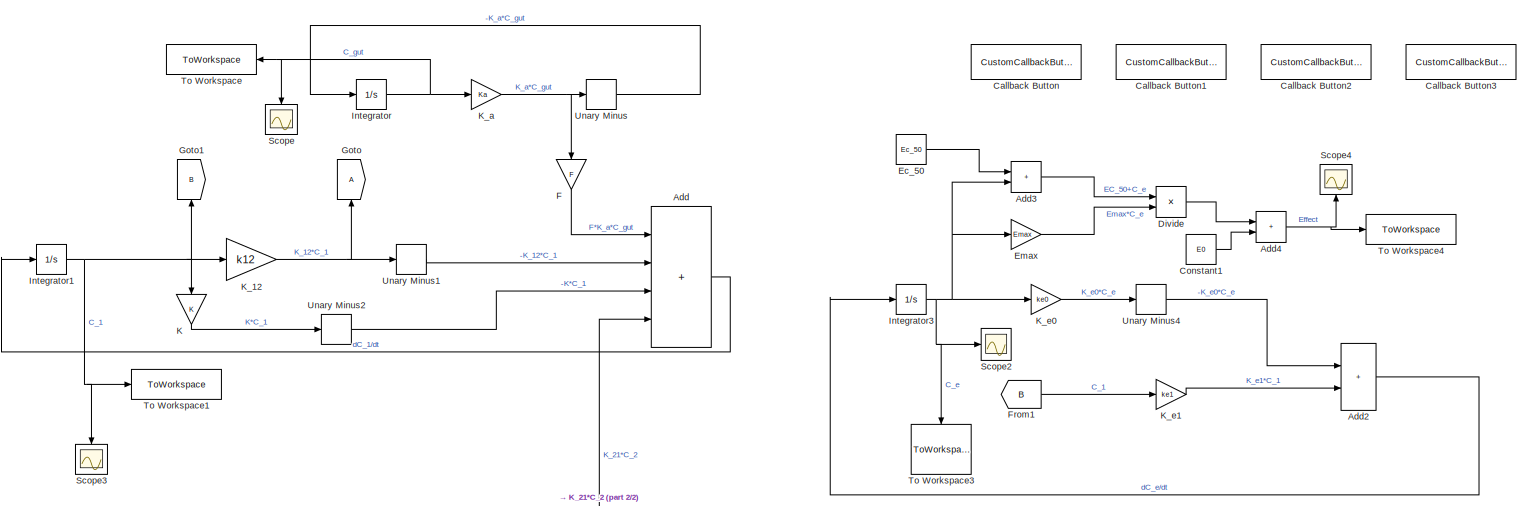
[diagram: root canvas - part 1/2, full width, top band]
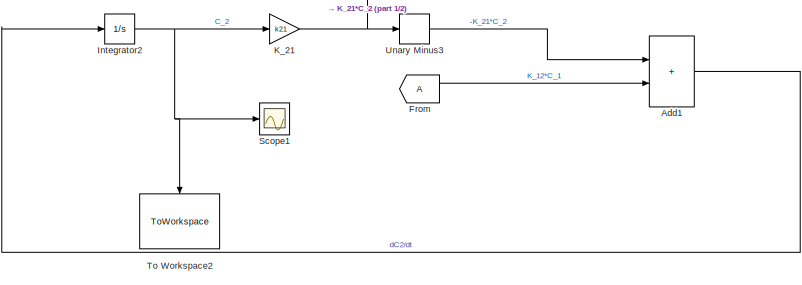
[diagram: root canvas - part 2/2, bottom center region]
MODEL slx_aa0d1e6b2fd5
KIND model
CONFIG AbsTol = auto
CONFIG EnableMultiTasking = off
CONFIG FixedStep = 0.01
CONFIG MaxStep = 1e-3
CONFIG MinStep = auto
CONFIG RelTol = 1e-5
CONFIG SampleTimeConstraint = Unconstrained
CONFIG SolverName = ode45
CONFIG StartTime = 0.0
CONFIG StopTime = 8
WORKSPACE source: MATLAB code (in-file)
WORKSPACE c_gut = linspace(200,1000,5)*0.89
WORKSPACE c_1 = 0
WORKSPACE c_2 = 0
WORKSPACE c_e = 0
WORKSPACE Ec_50 = 9.98
WORKSPACE E0 = 10
WORKSPACE Emax = 5.17
WORKSPACE K = 0.28
WORKSPACE k12 = 1.78
WORKSPACE k21 = 2.20  (= 2.2)
WORKSPACE Ka = 1.80  (= 1.8)
WORKSPACE ke1 = 0.83
WORKSPACE ke0 = 0.83
WORKSPACE F = 0.89
BLOCK [Sum] Add
  IconShape = rectangular
  Inputs = ++++
BLOCK [Sum] Add1
  IconShape = rectangular
BLOCK [Sum] Add2
  IconShape = rectangular
BLOCK [Sum] Add3
  IconShape = rectangular
BLOCK [Sum] Add4
  IconShape = rectangular
BLOCK [CustomCallbackButton] Callback Button
  Configuration = {"components":[{"name":"BackgroundImageComponent","settings":{"image":{"size":[0,0],"src":"default","srcOrientation":"Right"},"position":[0,0,1,1]}},{"name":"ButtonStateComponent","settings":{"buttonType":"momentary","clickFcn":"figure()\nplot(out.tout,out.C_1,'b','LineWidth',3)\nhold on\nplot(out.tout,out.C_2,'r','LineWidth',3)\nplot(out.tout,out.C_e,'g','Linewidth',3)\nplot(out.tout,out.C_gut,'m...<+2427ch>
  CustomBackgroundColor = {"color":[0.9568627451,0.9568627451,0.9568627451],"show":true}
BLOCK [CustomCallbackButton] Callback Button1
  Configuration = {"components":[{"name":"BackgroundImageComponent","settings":{"image":{"size":[0,0],"src":"default","srcOrientation":"Right"},"position":[0,0,1,1]}},{"name":"ButtonStateComponent","settings":{"buttonType":"momentary","clickFcn":"% Concentración plasmática\nfigure()\nplot(out.tout,out.C_1(:,1),'LineWidth',3)\nhold on\nfor i=2:size(out.C_1,2)\n    plot(out.tout,out.C_1(:,i),'LineWidth',3)\nend\ngrid...<+2603ch>
  CustomBackgroundColor = {"color":[0.9568627451,0.9568627451,0.9568627451],"show":true}
BLOCK [CustomCallbackButton] Callback Button2
  Configuration = {"components":[{"name":"BackgroundImageComponent","settings":{"image":{"size":[0,0],"src":"default","srcOrientation":"Right"},"position":[0,0,1,1]}},{"name":"ButtonStateComponent","settings":{"buttonType":"momentary","clickFcn":"% Paleta de colores\ncolor = ['b','r','g','m','c'];\n\n% Concentración plasmática\nfigure()\nplot(out.tout,out.C_1(:,1),color(1),'LineWidth',2)\nhold on\nfor i=2:size(out....<+2788ch>
  CustomBackgroundColor = {"color":[0.9568627451,0.9568627451,0.9568627451],"show":true}
BLOCK [CustomCallbackButton] Callback Button3
  Configuration = {"components":[{"name":"BackgroundImageComponent","settings":{"image":{"size":[0,0],"src":"default","srcOrientation":"Right"},"position":[0,0,1,1]}},{"name":"ButtonStateComponent","settings":{"buttonType":"momentary","clickFcn":"% Paleta de colores\ncolor = ['b','r','g','m','c'];\n\n% Concentración plasmática\nfigure()\nplot(out.tout,out.C_1(:,1),color(1),'LineWidth',2)\nhold on\nfor i=2:size(out....<+2780ch>
  CustomBackgroundColor = {"color":[0.9568627451,0.9568627451,0.9568627451],"show":true}
BLOCK [Constant] Constant1
  Value = E0
BLOCK [Product] Divide
  Inputs = /*
BLOCK [Constant] Ec_50
  Value = Ec_50
BLOCK [Gain] Emax
  Gain = Emax
BLOCK [Gain] F
  Gain = F
  NameLocation = left
BLOCK [From] From
BLOCK [From] From1
  GotoTag = B
BLOCK [Goto] Goto
  NameLocation = right
BLOCK [Goto] Goto1
  GotoTag = B
  NameLocation = right
BLOCK [Integrator] Integrator
  InitialCondition = c_gut
BLOCK [Integrator] Integrator1
  InitialCondition = c_1
BLOCK [Integrator] Integrator2
  InitialCondition = c_2
BLOCK [Integrator] Integrator3
  InitialCondition = c_e
BLOCK [Gain] K
  Gain = K
  NameLocation = left
BLOCK [Gain] K_12
  Gain = k12
BLOCK [Gain] K_21
  Gain = k21
BLOCK [Gain] K_a
  Gain = Ka
BLOCK [Gain] K_e0
  Gain = ke0
BLOCK [Gain] K_e1
  Gain = ke1
BLOCK [Scope] Scope
  Floating = off
  NameLocation = left
  NumInputPorts = 1
  ScopeSpecificationString = Simulink.scopes.TimeScopeBlockCfg('CurrentConfiguration', extmgr.ConfigurationSet(extmgr.Configuration('Core','General UI',true),extmgr.Configuration('Core','Source UI',true),extmgr.Configuration('Sources','WiredSimulink',true),extmgr.Configuration('Visuals','Time Domain',true),extmgr.Configuration('Tools','Plot Navigation',true),extmgr.Configuration('Tools','Measurements',true)),'Version','2024b'...<+1ch>
BLOCK [Scope] Scope1
  Floating = off
  NumInputPorts = 1
  ScopeSpecificationString = Simulink.scopes.TimeScopeBlockCfg('CurrentConfiguration', extmgr.ConfigurationSet(extmgr.Configuration('Core','General UI',true),extmgr.Configuration('Core','Source UI',true),extmgr.Configuration('Sources','WiredSimulink',true,'DataLoggingVariableName','ScopeData1'),extmgr.Configuration('Visuals','Time Domain',true,'SerializedDisplays',{struct('MinYLimReal','-33.83123','MaxYLimReal','304.48104','Y...<+1597ch>
BLOCK [Scope] Scope2
  Floating = off
  NumInputPorts = 1
  ScopeSpecificationString = Simulink.scopes.TimeScopeBlockCfg('CurrentConfiguration', extmgr.ConfigurationSet(extmgr.Configuration('Core','General UI',true),extmgr.Configuration('Core','Source UI',true),extmgr.Configuration('Sources','WiredSimulink',true,'DataLoggingVariableName','ScopeData2'),extmgr.Configuration('Visuals','Time Domain',true,'SerializedDisplays',{struct('MinYLimReal','-35.83643','MaxYLimReal','322.52791','Y...<+2268ch>
BLOCK [Scope] Scope3
  Floating = off
  NameLocation = left
  NumInputPorts = 1
  ScopeSpecificationString = Simulink.scopes.TimeScopeBlockCfg('CurrentConfiguration', extmgr.ConfigurationSet(extmgr.Configuration('Core','General UI',true),extmgr.Configuration('Core','Source UI',true),extmgr.Configuration('Sources','WiredSimulink',true,'DataLoggingVariableName','ScopeData3'),extmgr.Configuration('Visuals','Time Domain',true,'SerializedDisplays',{struct('MinYLimReal','-44.44819','MaxYLimReal','400.03368','Y...<+1874ch>
BLOCK [Scope] Scope4
  Floating = off
  NameLocation = right
  NumInputPorts = 1
  ScopeSpecificationString = Simulink.scopes.TimeScopeBlockCfg('CurrentConfiguration', extmgr.ConfigurationSet(extmgr.Configuration('Core','General UI',true),extmgr.Configuration('Core','Source UI',true),extmgr.Configuration('Sources','WiredSimulink',true,'DataLoggingVariableName','ScopeData1'),extmgr.Configuration('Visuals','Time Domain',true,'SerializedDisplays',{struct('MinYLimReal','9.37549','MaxYLimReal','15.62059','YLab...<+2288ch>
BLOCK [ToWorkspace] To Workspace
  FixptAsFi = on
  MaxDataPoints = inf
  NameLocation = top
  SampleTime = -1
  VariableName = C_gut
BLOCK [ToWorkspace] To Workspace1
  FixptAsFi = on
  MaxDataPoints = inf
  SampleTime = -1
  VariableName = C_1
BLOCK [ToWorkspace] To Workspace2
  FixptAsFi = on
  MaxDataPoints = inf
  NameLocation = left
  SampleTime = -1
  VariableName = C_2
BLOCK [ToWorkspace] To Workspace3
  FixptAsFi = on
  MaxDataPoints = inf
  NameLocation = left
  SampleTime = -1
  VariableName = C_e
BLOCK [ToWorkspace] To Workspace4
  FixptAsFi = on
  MaxDataPoints = inf
  SampleTime = -1
  VariableName = Effect
BLOCK [UnaryMinus] Unary Minus
BLOCK [UnaryMinus] Unary Minus1
BLOCK [UnaryMinus] Unary Minus2
BLOCK [UnaryMinus] Unary Minus3
BLOCK [UnaryMinus] Unary Minus4
LINE Add1:1 -> Integrator2:1
LINE Add2:1 -> Integrator3:1
LINE Add3:1 -> Divide:1
NET Add4:1 -> Scope4:1, To Workspace4:1
LINE Add:1 -> Integrator1:1
LINE Constant1:1 -> Add4:2
LINE Divide:1 -> Add4:1
LINE Ec_50:1 -> Add3:1
LINE Emax:1 -> Divide:2
LINE F:1 -> Add:1
LINE From1:1 -> K_e1:1
LINE From:1 -> Add1:2
NET Integrator1:1 -> Goto1:1, K:1, K_12:1, Scope3:1, To Workspace1:1
NET Integrator2:1 -> K_21:1, Scope1:1, To Workspace2:1
NET Integrator3:1 -> Add3:2, Emax:1, K_e0:1, Scope2:1, To Workspace3:1
NET Integrator:1 -> K_a:1, Scope:1, To Workspace:1
LINE K:1 -> Unary Minus2:1
NET K_12:1 -> Goto:1, Unary Minus1:1
NET K_21:1 -> Add:4, Unary Minus3:1
NET K_a:1 -> F:1, Unary Minus:1
LINE K_e0:1 -> Unary Minus4:1
LINE K_e1:1 -> Add2:2
LINE Unary Minus1:1 -> Add:2
LINE Unary Minus2:1 -> Add:3
LINE Unary Minus3:1 -> Add1:1
LINE Unary Minus4:1 -> Add2:1
LINE Unary Minus:1 -> Integrator:1
note: NET lines group one-source signal fan-out (src -> all destinations, sorted); 1:1 wires keep LINE
